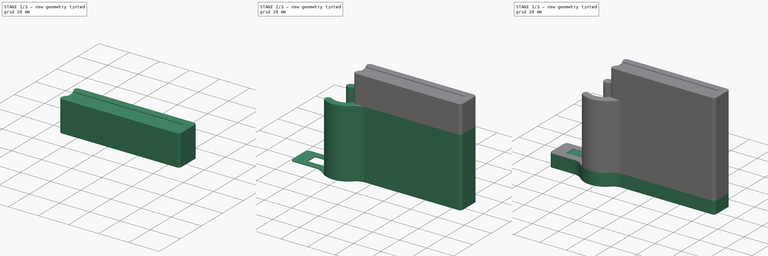
[diagram: build sequence overview — one tinted view per stage of 3, left to right]
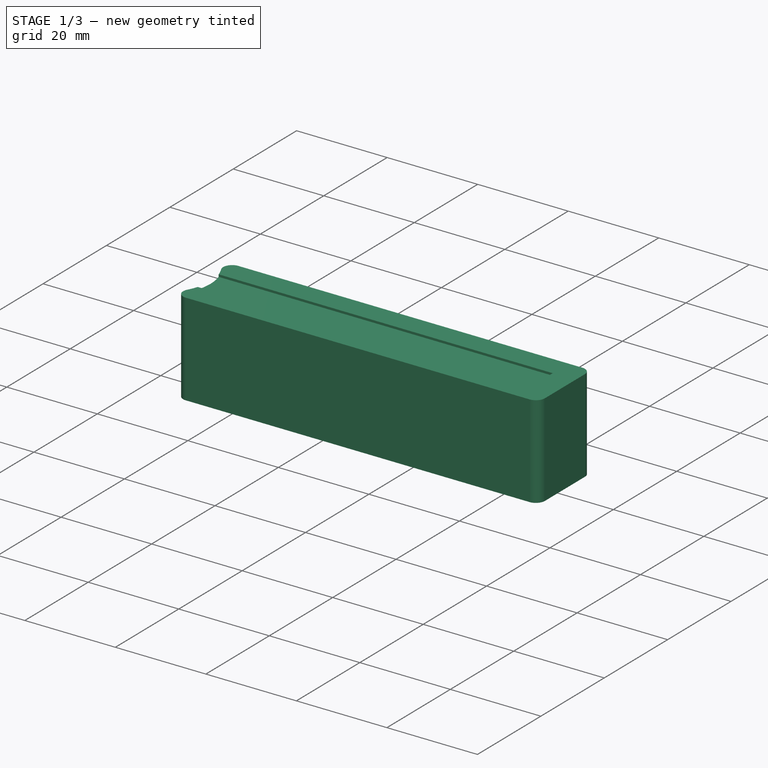
[diagram: stage 1 of 3 — iso view after this stage's code; geometry added in this stage tinted green]
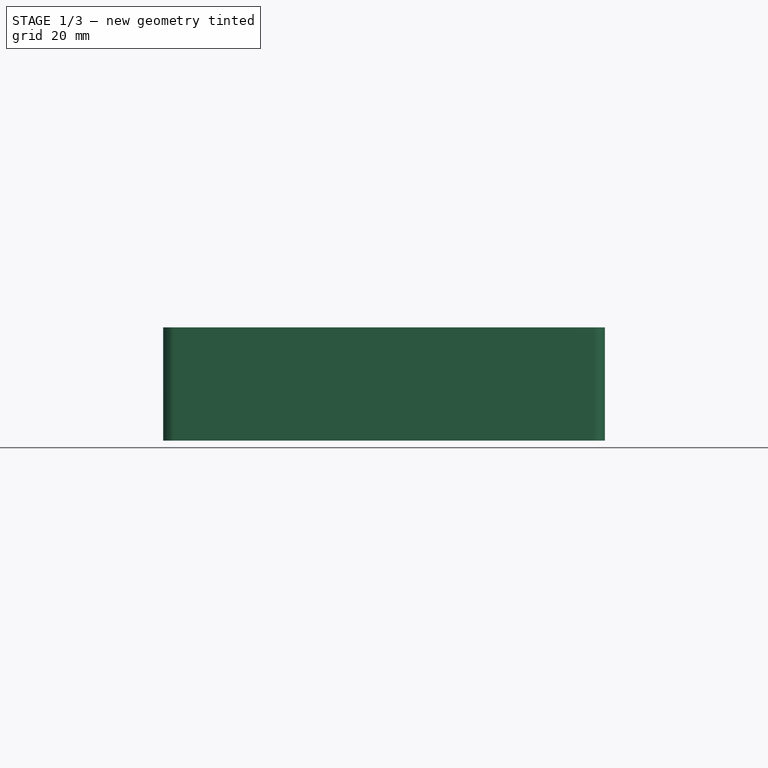
[diagram: stage 1 of 3 — front view after this stage's code; geometry added in this stage tinted green]
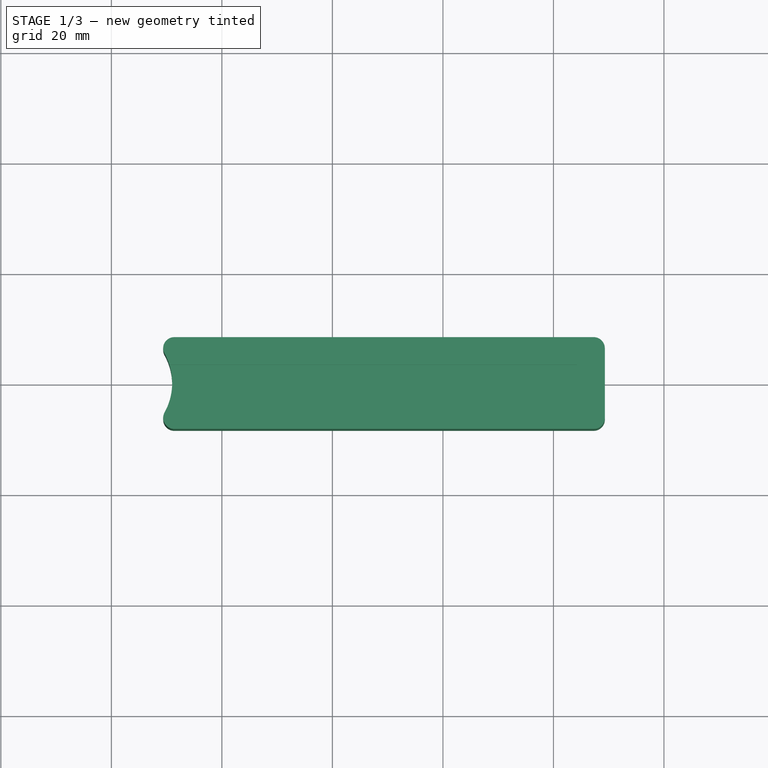
[diagram: stage 1 of 3 — top view after this stage's code; geometry added in this stage tinted green]
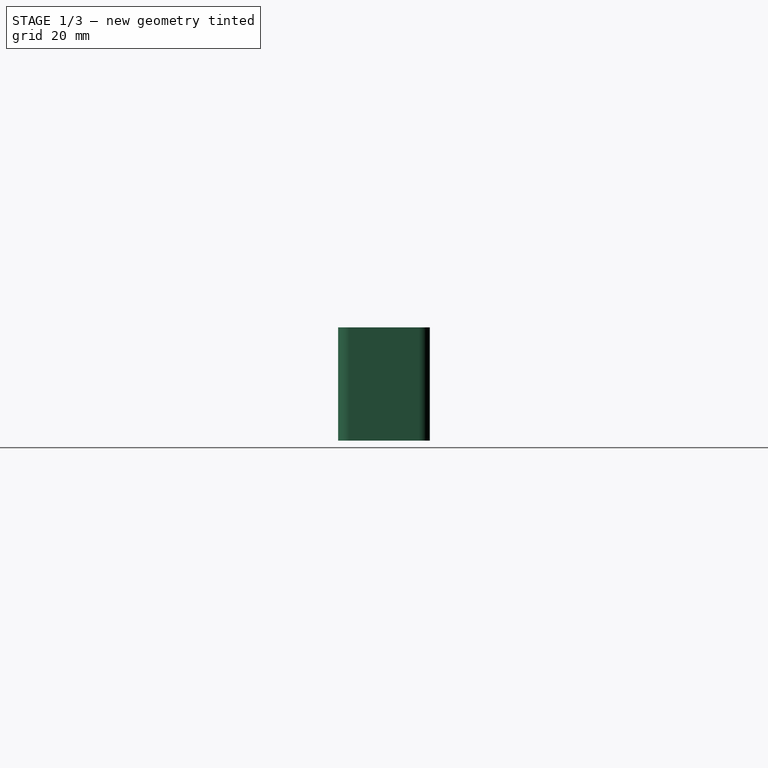
[diagram: stage 1 of 3 — right view after this stage's code; geometry added in this stage tinted green]
FCSTD DOCUMENT  (FreeCAD 0.20R29410 (Git))
Label: cell_welding_jig_lower
License: All rights reserved
LicenseURL: http://en.wikipedia.org/wiki/All_rights_reserved
objects: Sketcher::SketchObject×6, Part::Extrusion×6, Spreadsheet::Sheet×1, Part::MultiFuse×1, Part::Fillet×1
note: 14 computed .brp shape members not serialized (recipe doc carries the construction recipe); baked Part::Feature solids carry a one-line shape summary decoded from their .brp

FEATURE [Part::Extrusion] Extrude009  label="Extrude_Cell_Handling"
  Base = -> Sketch009
  Dir = (0,0,1)
  DirMode = 2
  FaceMakerClass = Part::FaceMakerBullseye
  LengthFwd = 78
  LengthRev = -60
  Solid = true
  Symmetric = false
  expr: LengthFwd = <<Param>>.Body_Base_Thickness + <<Param>>.Cell_Length - <<Param>>.Cell_Ring_Length
  expr: LengthRev = -(<<Param>>.Body_Base_Thickness + <<Param>>.Cell_Length - <<Param>>.Body_Cell_Handling_Height)
FEATURE [Part::Extrusion] Extrude010  label="Extrude_Cell_Ring"
  Base = -> Sketch010
  Dir = (0,0,1)
  DirMode = 2
  FaceMakerClass = Part::FaceMakerBullseye
  LengthFwd = 80
  LengthRev = -78
  Solid = true
  Symmetric = false
  expr: LengthFwd = <<Param>>.Body_Base_Thickness + <<Param>>.Cell_Length
  expr: LengthRev = -(<<Param>>.Body_Base_Thickness + <<Param>>.Cell_Length - <<Param>>.Cell_Ring_Length)
FEATURE [Part::Extrusion] Extrude011  label="Extrude_Upper_Celltab"
  Base = -> Sketch011
  Dir = (0,0,1)
  DirMode = 2
  FaceMakerClass = Part::FaceMakerBullseye
  LengthFwd = 80.5
  LengthRev = -80
  Solid = true
  Symmetric = false
  expr: LengthFwd = <<Param>>.Body_Base_Thickness + <<Param>>.Cell_Length + <<Param>>.Celltab_Up_Thickness
  expr: LengthRev = -(<<Param>>.Body_Base_Thickness + <<Param>>.Cell_Length)
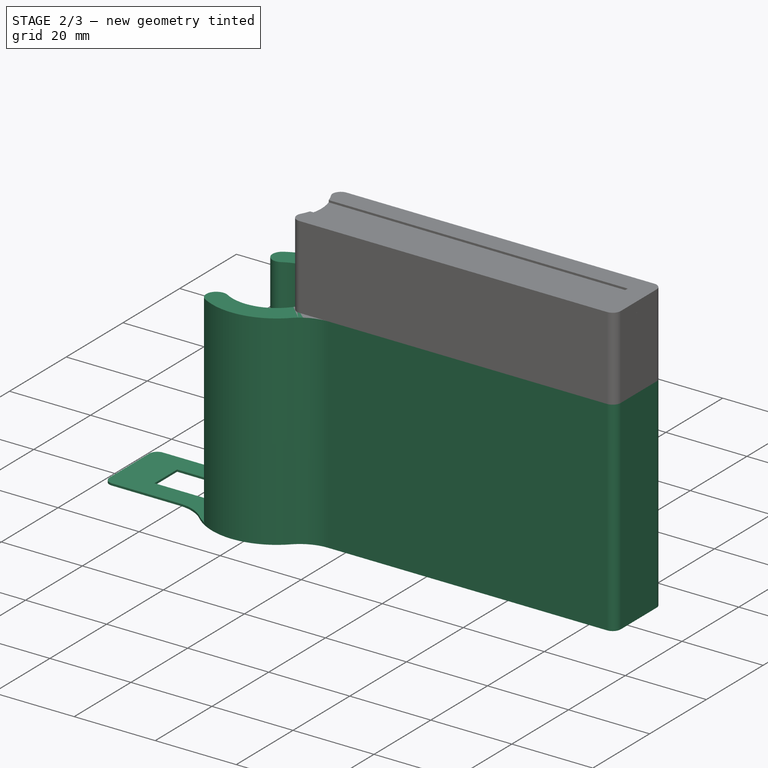
[diagram: stage 2 of 3 — iso view after this stage's code; geometry added in this stage tinted green]
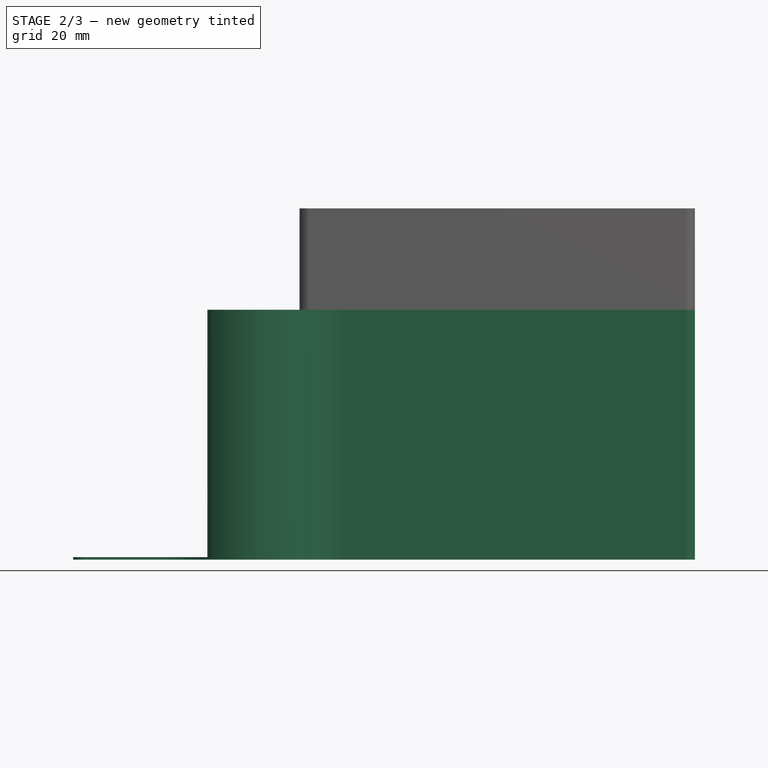
[diagram: stage 2 of 3 — front view after this stage's code; geometry added in this stage tinted green]
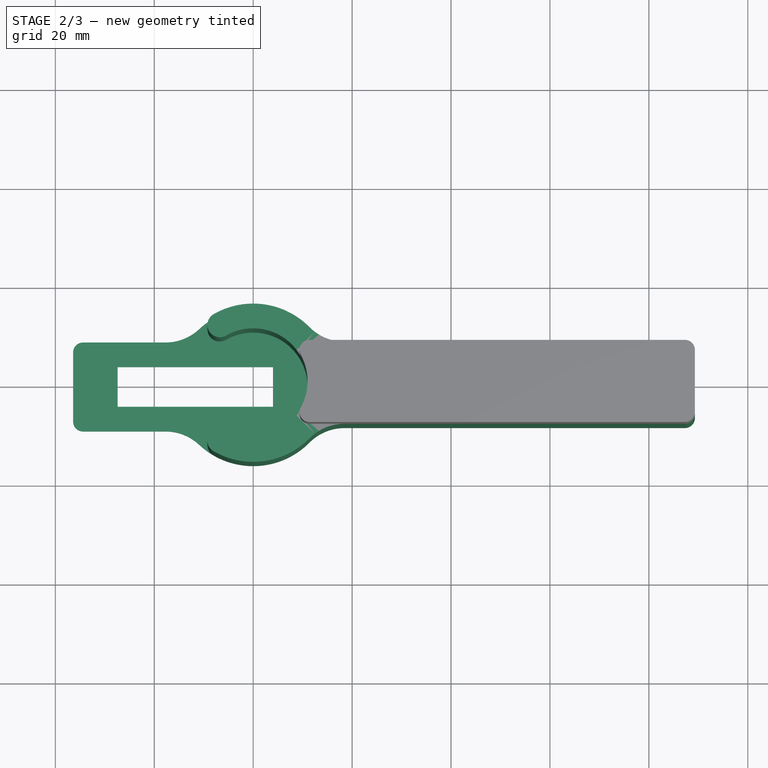
[diagram: stage 2 of 3 — top view after this stage's code; geometry added in this stage tinted green]
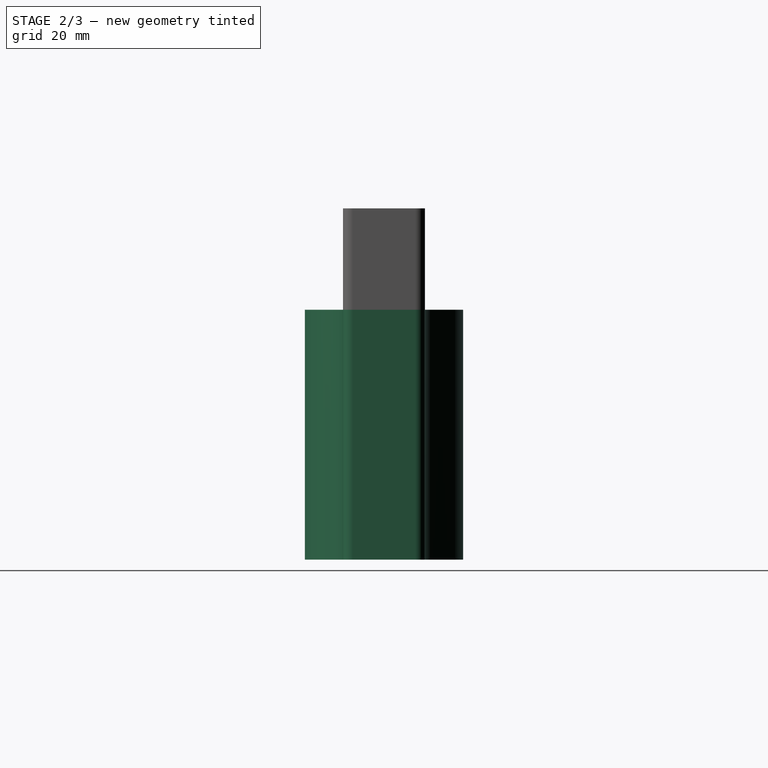
[diagram: stage 2 of 3 — right view after this stage's code; geometry added in this stage tinted green]
FEATURE [Part::Extrusion] Extrude007  label="Extrude_Lower_Celltab"
  Base = -> Sketch007
  Dir = (0,0,1)
  DirMode = 2
  FaceMakerClass = Part::FaceMakerBullseye
  LengthFwd = 10
  LengthRev = -9.5
  Solid = true
  Symmetric = false
  expr: LengthFwd = <<Param>>.Body_Base_Thickness
  expr: LengthRev = -(<<Param>>.Body_Base_Thickness - <<Param>>.Celltab_Low_Thickness)
FEATURE [Part::Extrusion] Extrude008  label="Extrude_Cell_Holder"
  Base = -> Sketch008
  Dir = (0,0,1)
  DirMode = 2
  FaceMakerClass = Part::FaceMakerBullseye
  LengthFwd = 60
  LengthRev = -10
  Solid = true
  Symmetric = false
  expr: LengthFwd = <<Param>>.Body_Base_Thickness + <<Param>>.Cell_Length - <<Param>>.Body_Cell_Handling_Height
  expr: LengthRev = -<<Param>>.Body_Base_Thickness
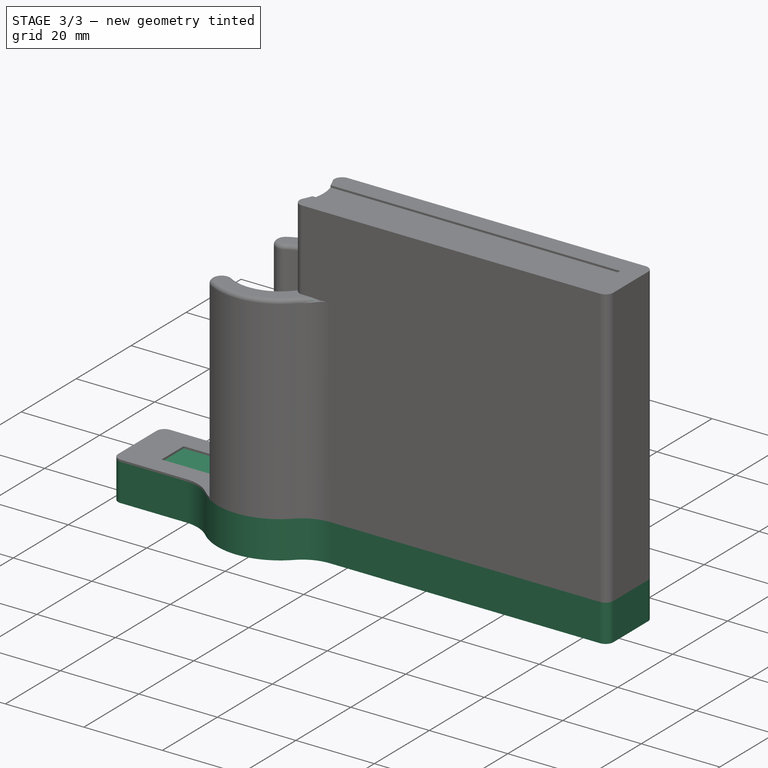
[diagram: stage 3 of 3 — iso view after this stage's code; geometry added in this stage tinted green]
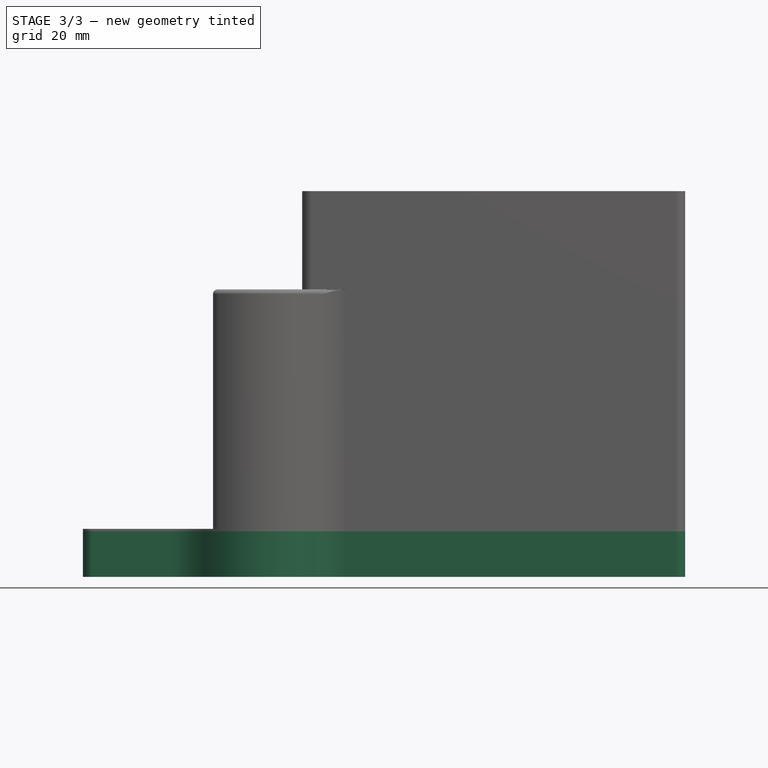
[diagram: stage 3 of 3 — front view after this stage's code; geometry added in this stage tinted green]
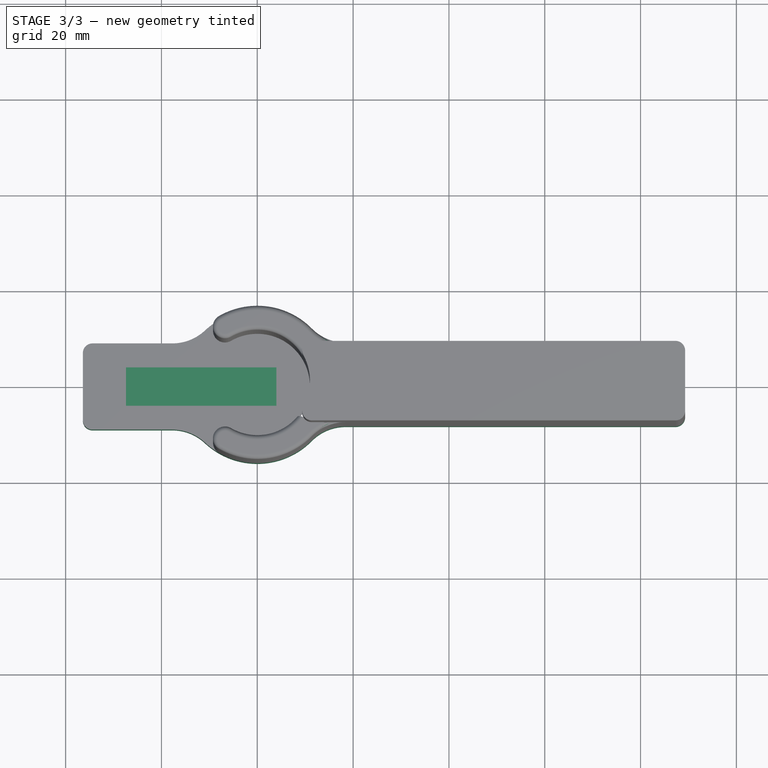
[diagram: stage 3 of 3 — top view after this stage's code; geometry added in this stage tinted green]
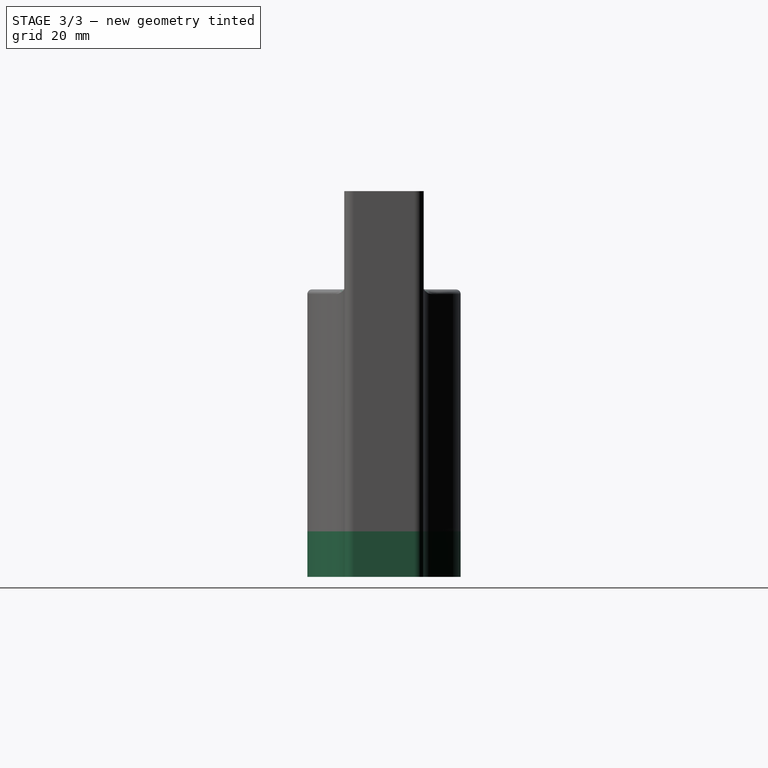
[diagram: stage 3 of 3 — right view after this stage's code; geometry added in this stage tinted green]
FEATURE [Spreadsheet::Sheet] Spreadsheet  label="Param"
  cells = A1=Cell; A2=Cell_Diameter; B2(Cell_Diameter)=21; A3=Cell_Length; B3(Cell_Length)=70; A4=Cell_Clearance; B4(Cell_Clearance)=0.5; A5=Cell_Ring_Diameter; B5(Cell_Ring_Diameter)=21; A6=Cell_Ring_Length; B6(Cell_Ring_Length)=2; A8=Lower Celltab; A9=Celltab_Low_Width; B9(Celltab_Low_Width)=6; A10=Celltab_Low_Length; B10(Celltab_Low_Length)=33.4; A11=Celltab_Low_Clearance; B11(Celltab_Low_Clearance)=1; A12=Celltab_Low_Thickness; B12(Celltab_Low_Thickness)=0.5; A14=Upper Celltab; A15=Celltab_Up_Width; B15(Celltab_Up_Width)=6; A16=Celltab_Up_Length; B16(Celltab_Up_Length)=87; A17=Celltab_Up_Clearance; B17(Celltab_Up_Clearance)=0.3; A18=Celltab_Up_Thickness; B18(Celltab_Up_Thickness)=0.5; A20=Body; A21=Body_Width; B21(Body_Width)=25; A22=Body_Cell_Wall; B22(Body_Cell_Wall)=5; A23=Body_Celltab_Wall; B23(Body_Celltab_Wall)=5; A24=Body_Cell_Opening_Angle; B24(Body_Cell_Opening_Angle)=120; A25=Body_Cell_Handling_Height; B25(Body_Cell_Handling_Height)=20; A26=Body_Base_Thickness; B26(Body_Base_Thickness)=10; A27=Body_Radius_Convex; B27(Body_Radius_Convex)=2; A28=Body_Radius_Concave; B28(Body_Radius_Concave)=10
FEATURE [Sketcher::SketchObject] Sketch006  label="Sketch_Base"
  FullyConstrained = true
  expr: Constraints[39] = <<Param>>.Body_Radius_Convex
  expr: Constraints[43] = <<Param>>.Body_Radius_Concave
  expr: Constraints[44] = <<Param>>.Celltab_Low_Length - <<Param>>.Celltab_Low_Width / 2 + <<Param>>.Celltab_Low_Clearance + <<Param>>.Body_Celltab_Wall
  expr: Constraints[45] = <<Param>>.Celltab_Up_Length - <<Param>>.Celltab_Up_Width / 2 + <<Param>>.Celltab_Up_Clearance + <<Param>>.Body_Celltab_Wall
  expr: Constraints[46] = <<Param>>.Celltab_Up_Width + 2 * <<Param>>.Celltab_Up_Clearance + 2 * <<Param>>.Body_Celltab_Wall
  expr: Constraints[47] = <<Param>>.Celltab_Low_Width + 2 * <<Param>>.Celltab_Low_Clearance + 2 * <<Param>>.Body_Celltab_Wall
  expr: Constraints[9] = <<Param>>.Cell_Diameter + 2 * <<Param>>.Cell_Clearance + 2 * Spreadsheet.Body_Cell_Wall
  sketch-geometry (20):
    g0: ArcOfCircle CenterX=0 CenterY=0 CenterZ=0 NormalX=0 NormalY=0 NormalZ=1 AngleXU=0 Radius=16 StartAngle=0.780798 EndAngle=2.32214
    g1: ArcOfCircle CenterX=0 CenterY=0 CenterZ=0 NormalX=0 NormalY=0 NormalZ=1 AngleXU=0 Radius=16 StartAngle=3.96104 EndAngle=5.50239
    g2: LineSegment StartX=-17.7482 StartY=9 StartZ=0 EndX=-34.4 EndY=9 EndZ=0
    g3: LineSegment StartX=-36.4 StartY=7 StartZ=0 EndX=-36.4 EndY=-7 EndZ=0
    g4: LineSegment StartX=-34.4 StartY=-9 StartZ=0 EndX=-17.7482 EndY=-9 EndZ=0
    g5: LineSegment StartX=18.4692 StartY=-8.3 StartZ=0 EndX=87.3 EndY=-8.3 EndZ=0
    g6: LineSegment StartX=89.3 StartY=-6.3 StartZ=0 EndX=89.3 EndY=6.3 EndZ=0
    g7: LineSegment StartX=87.3 StartY=8.3 StartZ=0 EndX=18.4692 EndY=8.3 EndZ=0
    g8: LineSegment StartX=-34.4 StartY=9 StartZ=0 EndX=0 EndY=0 EndZ=0
    g9: LineSegment StartX=-34.4 StartY=-9 StartZ=0 EndX=0 EndY=0 EndZ=0
    g10: LineSegment StartX=87.3 StartY=8.3 StartZ=0 EndX=0 EndY=0 EndZ=0
    g11: LineSegment StartX=87.3 StartY=-8.3 StartZ=0 EndX=0 EndY=0 EndZ=0
    g12: ArcOfCircle CenterX=-34.4 CenterY=7 CenterZ=0 NormalX=0 NormalY=0 NormalZ=1 AngleXU=0 Radius=2 StartAngle=1.5708 EndAngle=3.14159
    g13: ArcOfCircle CenterX=-34.4 CenterY=-7 CenterZ=0 NormalX=0 NormalY=0 NormalZ=1 AngleXU=0 Radius=2 StartAngle=3.14159 EndAngle=4.71239
    g14: ArcOfCircle CenterX=87.3 CenterY=6.3 CenterZ=0 NormalX=0 NormalY=0 NormalZ=1 AngleXU=0 Radius=2 StartAngle=2e-16 EndAngle=1.5708
    g15: ArcOfCircle CenterX=87.3 CenterY=-6.3 CenterZ=0 NormalX=0 NormalY=0 NormalZ=1 AngleXU=0 Radius=2 StartAngle=4.71239 EndAngle=6.28319
    g16: ArcOfCircle CenterX=-17.7482 CenterY=19 CenterZ=0 NormalX=0 NormalY=0 NormalZ=1 AngleXU=0 Radius=10 StartAngle=4.71239 EndAngle=5.46374
    g17: ArcOfCircle CenterX=18.4692 CenterY=18.3 CenterZ=0 NormalX=0 NormalY=0 NormalZ=1 AngleXU=0 Radius=10 StartAngle=3.92239 EndAngle=4.71239
    g18: ArcOfCircle CenterX=18.4692 CenterY=-18.3 CenterZ=0 NormalX=0 NormalY=0 NormalZ=1 AngleXU=0 Radius=10 StartAngle=1.5708 EndAngle=2.3608
    g19: ArcOfCircle CenterX=-17.7482 CenterY=-19 CenterZ=0 NormalX=0 NormalY=0 NormalZ=1 AngleXU=0 Radius=10 StartAngle=0.819448 EndAngle=1.5708
  constraints (48):
    c: Coincident(g0,g-1)
    c: Coincident(g1,g0)
    c: Horizontal(g2)
    c: Vertical(g3)
    c: Horizontal(g4)
    c: Horizontal(g5)
    c: Vertical(g6)
    c: Horizontal(g7)
    c: Equal(g0,g1)
    c: Diameter(g0) = 32
    c: Coincident(g8,g0)
    c: Coincident(g9,g0)
    c: Coincident(g10,g0)
    c: Coincident(g11,g0)
    c: Equal(g8,g9)
    c: Equal(g10,g11)
    c: Tangent(g2,g12) = -1.5708
    c: Tangent(g3,g12) = -1.5708
    c: Tangent(g4,g13) = -1.5708
    c: Tangent(g3,g13) = -1.5708
    c: Tangent(g7,g14) = -1.5708
    c: Tangent(g6,g14) = -1.5708
    c: Tangent(g5,g15) = -1.5708
    c: Tangent(g6,g15) = -1.5708
    c: Tangent(g2,g16) = 1.5708
    c: Tangent(g0,g16) = 1.5708
    c: Tangent(g7,g17) = 1.5708
    c: Tangent(g0,g17) = 1.5708
    c: Tangent(g5,g18) = 1.5708
    c: Tangent(g1,g18) = 1.5708
    c: Tangent(g4,g19) = 1.5708
    c: Tangent(g1,g19) = 1.5708
    c: Coincident(g8,g2)
    c: Coincident(g9,g4)
    c: Coincident(g10,g7)
    c: Coincident(g5,g11)
    c: Equal(g12,g13)
    c: Equal(g12,g15)
    c: Equal(g12,g14)
    c: Radius(g12) = 2
    c: Equal(g16,g19)
    c: Equal(g16,g18)
    c: Equal(g16,g17)
    c: Radius(g16) = 10
    c: Distance(g3,g-2) = 36.4
    c: Distance(g6,g-2) = 89.3
    c: Distance(g7,g5) = 16.6
    c: Distance(g2,g4) = 18
FEATURE [Sketcher::SketchObject] Sketch007  label="Sketch_Lower_Celltab"
  FullyConstrained = true
  expr: Constraints[39] = <<Param>>.Body_Radius_Convex
  expr: Constraints[43] = <<Param>>.Body_Radius_Concave
  expr: Constraints[44] = <<Param>>.Celltab_Low_Length - <<Param>>.Celltab_Low_Width / 2 + <<Param>>.Celltab_Low_Clearance + <<Param>>.Body_Celltab_Wall
  expr: Constraints[45] = <<Param>>.Celltab_Up_Length - <<Param>>.Celltab_Up_Width / 2 + <<Param>>.Celltab_Up_Clearance + <<Param>>.Body_Celltab_Wall
  expr: Constraints[46] = <<Param>>.Celltab_Up_Width + 2 * <<Param>>.Celltab_Up_Clearance + 2 * <<Param>>.Body_Celltab_Wall
  expr: Constraints[47] = <<Param>>.Celltab_Low_Width + 2 * <<Param>>.Celltab_Low_Clearance + 2 * <<Param>>.Body_Celltab_Wall
  expr: Constraints[56] = <<Param>>.Celltab_Low_Width + 2 * <<Param>>.Celltab_Low_Clearance
  expr: Constraints[57] = <<Param>>.Celltab_Low_Length - <<Param>>.Celltab_Low_Width / 2 + <<Param>>.Celltab_Low_Clearance
  expr: Constraints[58] = <<Param>>.Celltab_Low_Width / 2 + <<Param>>.Celltab_Low_Clearance
  expr: Constraints[9] = <<Param>>.Cell_Diameter + 2 * <<Param>>.Cell_Clearance + 2 * Spreadsheet.Body_Cell_Wall
  sketch-geometry (26):
    g0: ArcOfCircle CenterX=0 CenterY=0 CenterZ=0 NormalX=0 NormalY=0 NormalZ=1 AngleXU=0 Radius=16 StartAngle=0.780798 EndAngle=2.32214
    g1: ArcOfCircle CenterX=0 CenterY=0 CenterZ=0 NormalX=0 NormalY=0 NormalZ=1 AngleXU=0 Radius=16 StartAngle=3.96104 EndAngle=5.50239
    g2: LineSegment StartX=-17.7482 StartY=9 StartZ=0 EndX=-34.4 EndY=9 EndZ=0
    g3: LineSegment StartX=-36.4 StartY=7 StartZ=0 EndX=-36.4 EndY=-7 EndZ=0
    g4: LineSegment StartX=-34.4 StartY=-9 StartZ=0 EndX=-17.7482 EndY=-9 EndZ=0
    g5: LineSegment StartX=18.4692 StartY=-8.3 StartZ=0 EndX=87.3 EndY=-8.3 EndZ=0
    g6: LineSegment StartX=89.3 StartY=-6.3 StartZ=0 EndX=89.3 EndY=6.3 EndZ=0
    g7: LineSegment StartX=87.3 StartY=8.3 StartZ=0 EndX=18.4692 EndY=8.3 EndZ=0
    g8: LineSegment StartX=-34.4 StartY=9 StartZ=0 EndX=0 EndY=0 EndZ=0
    g9: LineSegment StartX=-34.4 StartY=-9 StartZ=0 EndX=0 EndY=0 EndZ=0
    g10: LineSegment StartX=87.3 StartY=8.3 StartZ=0 EndX=0 EndY=0 EndZ=0
    g11: LineSegment StartX=87.3 StartY=-8.3 StartZ=0 EndX=0 EndY=0 EndZ=0
    g12: ArcOfCircle CenterX=-34.4 CenterY=7 CenterZ=0 NormalX=0 NormalY=0 NormalZ=1 AngleXU=0 Radius=2 StartAngle=1.5708 EndAngle=3.14159
    g13: ArcOfCircle CenterX=-34.4 CenterY=-7 CenterZ=0 NormalX=0 NormalY=0 NormalZ=1 AngleXU=0 Radius=2 StartAngle=3.14159 EndAngle=4.71239
    g14: ArcOfCircle CenterX=87.3 CenterY=6.3 CenterZ=0 NormalX=0 NormalY=0 NormalZ=1 AngleXU=0 Radius=2 StartAngle=2e-16 EndAngle=1.5708
    g15: ArcOfCircle CenterX=87.3 CenterY=-6.3 CenterZ=0 NormalX=0 NormalY=0 NormalZ=1 AngleXU=0 Radius=2 StartAngle=4.71239 EndAngle=6.28319
    g16: ArcOfCircle CenterX=-17.7482 CenterY=19 CenterZ=0 NormalX=0 NormalY=0 NormalZ=1 AngleXU=0 Radius=10 StartAngle=4.71239 EndAngle=5.46374
    g17: ArcOfCircle CenterX=18.4692 CenterY=18.3 CenterZ=0 NormalX=0 NormalY=0 NormalZ=1 AngleXU=0 Radius=10 StartAngle=3.92239 EndAngle=4.71239
    g18: ArcOfCircle CenterX=18.4692 CenterY=-18.3 CenterZ=0 NormalX=0 NormalY=0 NormalZ=1 AngleXU=0 Radius=10 StartAngle=1.5708 EndAngle=2.3608
    g19: ArcOfCircle CenterX=-17.7482 CenterY=-19 CenterZ=0 NormalX=0 NormalY=0 NormalZ=1 AngleXU=0 Radius=10 StartAngle=0.819448 EndAngle=1.5708
    g20: LineSegment StartX=-27.4 StartY=4 StartZ=0 EndX=4 EndY=4 EndZ=0
    g21: LineSegment StartX=4 StartY=4 StartZ=0 EndX=4 EndY=-4 EndZ=0
    g22: LineSegment StartX=4 StartY=-4 StartZ=0 EndX=-27.4 EndY=-4 EndZ=0
    g23: LineSegment StartX=-27.4 StartY=4 StartZ=0 EndX=-27.4 EndY=-4 EndZ=0
    g24: LineSegment StartX=0 StartY=0 StartZ=0 EndX=4 EndY=4 EndZ=0
    g25: LineSegment StartX=0 StartY=0 StartZ=0 EndX=4 EndY=-4 EndZ=0
  constraints (64):
    c: Coincident(g0,g-1)
    c: Coincident(g1,g0)
    c: Horizontal(g2)
    c: Vertical(g3)
    c: Horizontal(g4)
    c: Horizontal(g5)
    c: Vertical(g6)
    c: Horizontal(g7)
    c: Equal(g0,g1)
    c: Diameter(g0) = 32
    c: Coincident(g8,g0)
    c: Coincident(g9,g0)
    c: Coincident(g10,g0)
    c: Coincident(g11,g0)
    c: Equal(g8,g9)
    c: Equal(g10,g11)
    c: Tangent(g2,g12) = -1.5708
    c: Tangent(g3,g12) = -1.5708
    c: Tangent(g4,g13) = -1.5708
    c: Tangent(g3,g13) = -1.5708
    c: Tangent(g7,g14) = -1.5708
    c: Tangent(g6,g14) = -1.5708
    c: Tangent(g5,g15) = -1.5708
    c: Tangent(g6,g15) = -1.5708
    c: Tangent(g2,g16) = 1.5708
    c: Tangent(g0,g16) = 1.5708
    c: Tangent(g7,g17) = 1.5708
    c: Tangent(g0,g17) = 1.5708
    c: Tangent(g5,g18) = 1.5708
    c: Tangent(g1,g18) = 1.5708
    c: Tangent(g4,g19) = 1.5708
    c: Tangent(g1,g19) = 1.5708
    c: Coincident(g8,g2)
    c: Coincident(g9,g4)
    c: Coincident(g10,g7)
    c: Coincident(g5,g11)
    c: Equal(g12,g13)
    c: Equal(g12,g15)
    c: Equal(g12,g14)
    c: Radius(g12) = 2
    c: Equal(g16,g19)
    c: Equal(g16,g18)
    c: Equal(g16,g17)
    c: Radius(g16) = 10
    c: Distance(g3,g-2) = 36.4
    c: Distance(g6,g-2) = 89.3
    c: Distance(g7,g5) = 16.6
    c: Distance(g2,g4) = 18
    c: Horizontal(g20)
    c: Coincident(g21,g20)
    c: Vertical(g21)
    c: Coincident(g22,g21)
    c: Horizontal(g22)
    c: Coincident(g23,g20)
    c: Coincident(g23,g22)
    c: Vertical(g23)
    c: Distance(g21) = 8
    c: Distance(g22) = 31.4
    c: Distance(g0,g21) = 4
    c: Coincident(g24,g0)
    c: Coincident(g24,g20)
    c: Coincident(g25,g0)
    c: Coincident(g25,g21)
    c: Equal(g24,g25)
FEATURE [Sketcher::SketchObject] Sketch008  label="Sketch_Cell_Holder"
  FullyConstrained = true
  expr: Constraints[22] = <<Param>>.Celltab_Up_Length - <<Param>>.Celltab_Up_Width / 2 + <<Param>>.Celltab_Up_Clearance + <<Param>>.Body_Celltab_Wall
  expr: Constraints[23] = <<Param>>.Celltab_Up_Width + 2 * <<Param>>.Celltab_Up_Clearance + 2 * <<Param>>.Body_Celltab_Wall
  expr: Constraints[25] = <<Param>>.Cell_Diameter + 2 * <<Param>>.Cell_Clearance
  expr: Constraints[37] = <<Param>>.Body_Radius_Convex
  expr: Constraints[39] = <<Param>>.Body_Radius_Concave
  expr: Constraints[43] = <<Param>>.Body_Cell_Opening_Angle
  expr: Constraints[6] = <<Param>>.Cell_Diameter + 2 * <<Param>>.Cell_Clearance + 2 * Spreadsheet.Body_Cell_Wall
  sketch-geometry (17):
    g0: ArcOfCircle CenterX=1.04876e-11 CenterY=0 CenterZ=0 NormalX=0 NormalY=0 NormalZ=1 AngleXU=0 Radius=16 StartAngle=0.780798 EndAngle=2.0944
    g1: ArcOfCircle CenterX=1.04876e-11 CenterY=0 CenterZ=0 NormalX=0 NormalY=0 NormalZ=1 AngleXU=0 Radius=16 StartAngle=4.18879 EndAngle=5.50239
    g2: LineSegment StartX=18.4692 StartY=-8.3 StartZ=0 EndX=87.3 EndY=-8.3 EndZ=0
    g3: LineSegment StartX=89.3 StartY=-6.3 StartZ=0 EndX=89.3 EndY=6.3 EndZ=0
    g4: LineSegment StartX=87.3 StartY=8.3 StartZ=0 EndX=18.4692 EndY=8.3 EndZ=0
    g5: LineSegment StartX=-6.75 StartY=11.6913 StartZ=0 EndX=1.04876e-11 EndY=0 EndZ=0
    g6: LineSegment StartX=-6.75 StartY=-11.6913 StartZ=0 EndX=1.04876e-11 EndY=0 EndZ=0
    g7: LineSegment StartX=87.3 StartY=8.3 StartZ=0 EndX=1.04876e-11 EndY=0 EndZ=0
    g8: LineSegment StartX=87.3 StartY=-8.3 StartZ=0 EndX=1.04876e-11 EndY=0 EndZ=0
    g9: ArcOfCircle CenterX=87.3 CenterY=6.3 CenterZ=0 NormalX=0 NormalY=0 NormalZ=1 AngleXU=0 Radius=2 StartAngle=-1.91e-13 EndAngle=1.5708
    g10: ArcOfCircle CenterX=87.3 CenterY=-6.3 CenterZ=0 NormalX=0 NormalY=0 NormalZ=1 AngleXU=0 Radius=2 StartAngle=4.71239 EndAngle=6.28319
    g11: ArcOfCircle CenterX=18.4692 CenterY=18.3 CenterZ=0 NormalX=0 NormalY=0 NormalZ=1 AngleXU=0 Radius=10 StartAngle=3.92239 EndAngle=4.71239
    g12: ArcOfCircle CenterX=18.4692 CenterY=-18.3 CenterZ=0 NormalX=0 NormalY=0 NormalZ=1 AngleXU=0 Radius=10 StartAngle=1.5708 EndAngle=2.3608
    g13: ArcOfCircle CenterX=1.04876e-11 CenterY=0 CenterZ=0 NormalX=0 NormalY=0 NormalZ=1 AngleXU=0 Radius=11 StartAngle=4.18879 EndAngle=8.37758
    g14: ArcOfCircle CenterX=-6.75 CenterY=11.6913 CenterZ=0 NormalX=0 NormalY=0 NormalZ=1 AngleXU=0 Radius=2.5 StartAngle=2.0944 EndAngle=5.23599
    g15: ArcOfCircle CenterX=-6.75 CenterY=-11.6913 CenterZ=0 NormalX=0 NormalY=0 NormalZ=1 AngleXU=0 Radius=2.5 StartAngle=1.0472 EndAngle=4.18879
    g16: LineSegment StartX=-6.75 StartY=11.6913 StartZ=0 EndX=-6.75 EndY=-11.6913 EndZ=0
  constraints (44):
    c: Coincident(g0,g-1)
    c: Coincident(g1,g0)
    c: Horizontal(g2)
    c: Vertical(g3)
    c: Horizontal(g4)
    c: Equal(g0,g1)
    c: Diameter(g0) = 32
    c: Coincident(g5,g0)
    c: Coincident(g6,g0)
    c: Coincident(g7,g0)
    c: Coincident(g8,g0)
    c: Equal(g7,g8)
    c: Tangent(g4,g9) = -1.5708
    c: Tangent(g3,g9) = -1.5708
    c: Tangent(g2,g10) = -1.5708
    c: Tangent(g3,g10) = -1.5708
    c: Tangent(g4,g11) = 1.5708
    c: Tangent(g0,g11) = 1.5708
    c: Tangent(g2,g12) = 1.5708
    c: Tangent(g1,g12) = 1.5708
    c: Coincident(g7,g4)
    c: Coincident(g2,g8)
    c: Distance(g3,g-2) = 89.3
    c: Distance(g4,g2) = 16.6
    c: Coincident(g13,g0)
    c: Diameter(g13) = 22
    c: Coincident(g14,g0)
    c: Coincident(g14,g13)
    c: Coincident(g15,g1)
    c: Coincident(g15,g13)
    c: Coincident(g5,g14)
    c: Coincident(g6,g15)
    c: PointOnObject(g13,g6)
    c: PointOnObject(g1,g6)
    c: PointOnObject(g13,g5)
    c: PointOnObject(g0,g5)
    c: Equal(g9,g10)
    c: Radius(g9) = 2
    c: Equal(g12,g11)
    c: Radius(g12) = 10
    c: Coincident(g16,g14)
    c: Coincident(g16,g15)
    c: Vertical(g16)
    c: Angle(g5,g6) = 2.0944
FEATURE [Sketcher::SketchObject] Sketch009  label="Sketch_Cell_Handling"
  FullyConstrained = true
  expr: Constraints[10] = <<Param>>.Celltab_Up_Length - <<Param>>.Celltab_Up_Width / 2 + <<Param>>.Celltab_Up_Clearance + <<Param>>.Body_Celltab_Wall
  expr: Constraints[11] = <<Param>>.Celltab_Up_Width + 2 * <<Param>>.Celltab_Up_Clearance + 2 * <<Param>>.Body_Celltab_Wall
  expr: Constraints[12] = <<Param>>.Cell_Diameter + 2 * <<Param>>.Cell_Clearance
  expr: Constraints[14] = <<Param>>.Body_Radius_Convex
  sketch-geometry (10):
    g0: LineSegment StartX=11.3715 StartY=-8.3 StartZ=0 EndX=87.3 EndY=-8.3 EndZ=0
    g1: LineSegment StartX=89.3 StartY=-6.3 StartZ=0 EndX=89.3 EndY=6.3 EndZ=0
    g2: LineSegment StartX=87.3 StartY=8.3 StartZ=0 EndX=11.3715 EndY=8.3 EndZ=0
    g3: LineSegment StartX=87.3 StartY=8.3 StartZ=0 EndX=0 EndY=0 EndZ=0
    g4: LineSegment StartX=87.3 StartY=-8.3 StartZ=0 EndX=0 EndY=0 EndZ=0
    g5: ArcOfCircle CenterX=87.3 CenterY=6.3 CenterZ=0 NormalX=0 NormalY=0 NormalZ=1 AngleXU=0 Radius=2 StartAngle=3.8032e-11 EndAngle=1.5708
    g6: ArcOfCircle CenterX=87.3 CenterY=-6.3 CenterZ=0 NormalX=0 NormalY=0 NormalZ=1 AngleXU=0 Radius=2 StartAngle=4.71239 EndAngle=6.28319
    g7: ArcOfCircle CenterX=0 CenterY=0 CenterZ=0 NormalX=0 NormalY=0 NormalZ=1 AngleXU=0 Radius=11 StartAngle=5.77726 EndAngle=6.78911
    g8: ArcOfCircle CenterX=11.3715 CenterY=6.3 CenterZ=0 NormalX=0 NormalY=0 NormalZ=1 AngleXU=0 Radius=2 StartAngle=1.5708 EndAngle=3.64752
    g9: ArcOfCircle CenterX=11.3715 CenterY=-6.3 CenterZ=0 NormalX=0 NormalY=0 NormalZ=1 AngleXU=0 Radius=2 StartAngle=2.63567 EndAngle=4.71239
  constraints (24):
    c: Horizontal(g0)
    c: Vertical(g1)
    c: Horizontal(g2)
    c: Equal(g3,g4)
    c: Tangent(g2,g5) = -1.5708
    c: Tangent(g1,g5) = -1.5708
    c: Tangent(g0,g6) = -1.5708
    c: Tangent(g1,g6) = -1.5708
    c: Coincident(g3,g2)
    c: Coincident(g0,g4)
    c: Distance(g1,g-2) = 89.3
    c: Distance(g2,g0) = 16.6
    c: Diameter(g7) = 22
    c: Equal(g5,g6)
    c: Radius(g5) = 2
    c: Coincident(g3,g7)
    c: Coincident(g7,g-1)
    c: Coincident(g4,g7)
    c: Tangent(g2,g8) = -1.5708
    c: Tangent(g7,g8) = 1.5708
    c: Tangent(g0,g9) = -1.5708
    c: Tangent(g7,g9) = 1.5708
    c: Equal(g8,g5)
    c: Equal(g9,g6)
FEATURE [Sketcher::SketchObject] Sketch010  label="Sketch_Cell_Ring"
  FullyConstrained = true
  expr: Constraints[10] = <<Param>>.Celltab_Up_Length - <<Param>>.Celltab_Up_Width / 2 + <<Param>>.Celltab_Up_Clearance + <<Param>>.Body_Celltab_Wall
  expr: Constraints[11] = <<Param>>.Celltab_Up_Width + 2 * <<Param>>.Celltab_Up_Clearance + 2 * <<Param>>.Body_Celltab_Wall
  expr: Constraints[12] = <<Param>>.Cell_Ring_Diameter + 2 * <<Param>>.Cell_Clearance
  expr: Constraints[14] = <<Param>>.Body_Radius_Convex
  sketch-geometry (10):
    g0: LineSegment StartX=11.3715 StartY=-8.3 StartZ=0 EndX=87.3 EndY=-8.3 EndZ=0
    g1: LineSegment StartX=89.3 StartY=-6.3 StartZ=0 EndX=89.3 EndY=6.3 EndZ=0
    g2: LineSegment StartX=87.3 StartY=8.3 StartZ=0 EndX=11.3715 EndY=8.3 EndZ=0
    g3: LineSegment StartX=87.3 StartY=8.3 StartZ=0 EndX=0 EndY=0 EndZ=0
    g4: LineSegment StartX=87.3 StartY=-8.3 StartZ=0 EndX=0 EndY=0 EndZ=0
    g5: ArcOfCircle CenterX=87.3 CenterY=6.3 CenterZ=0 NormalX=0 NormalY=0 NormalZ=1 AngleXU=0 Radius=2 StartAngle=0 EndAngle=1.5708
    g6: ArcOfCircle CenterX=87.3 CenterY=-6.3 CenterZ=0 NormalX=0 NormalY=0 NormalZ=1 AngleXU=0 Radius=2 StartAngle=4.71239 EndAngle=6.28319
    g7: ArcOfCircle CenterX=0 CenterY=0 CenterZ=0 NormalX=0 NormalY=0 NormalZ=1 AngleXU=0 Radius=11 StartAngle=5.77726 EndAngle=6.78911
    g8: ArcOfCircle CenterX=11.3715 CenterY=6.3 CenterZ=0 NormalX=0 NormalY=0 NormalZ=1 AngleXU=0 Radius=2 StartAngle=1.5708 EndAngle=3.64752
    g9: ArcOfCircle CenterX=11.3715 CenterY=-6.3 CenterZ=0 NormalX=0 NormalY=0 NormalZ=1 AngleXU=0 Radius=2 StartAngle=2.63567 EndAngle=4.71239
  constraints (24):
    c: Horizontal(g0)
    c: Vertical(g1)
    c: Horizontal(g2)
    c: Equal(g3,g4)
    c: Tangent(g2,g5) = -1.5708
    c: Tangent(g1,g5) = -1.5708
    c: Tangent(g0,g6) = -1.5708
    c: Tangent(g1,g6) = -1.5708
    c: Coincident(g3,g2)
    c: Coincident(g0,g4)
    c: Distance(g1,g-2) = 89.3
    c: Distance(g2,g0) = 16.6
    c: Diameter(g7) = 22
    c: Equal(g5,g6)
    c: Radius(g5) = 2
    c: Coincident(g3,g7)
    c: Coincident(g7,g-1)
    c: Coincident(g4,g7)
    c: Tangent(g2,g8) = -1.5708
    c: Tangent(g7,g8) = 1.5708
    c: Tangent(g0,g9) = -1.5708
    c: Tangent(g7,g9) = 1.5708
    c: Equal(g8,g5)
    c: Equal(g9,g6)
FEATURE [Sketcher::SketchObject] Sketch011  label="Sketch_Upper_Celltab"
  FullyConstrained = true
  expr: Constraints[10] = <<Param>>.Celltab_Up_Length - <<Param>>.Celltab_Up_Width / 2 + <<Param>>.Celltab_Up_Clearance + <<Param>>.Body_Celltab_Wall
  expr: Constraints[11] = <<Param>>.Celltab_Up_Width + 2 * <<Param>>.Celltab_Up_Clearance + 2 * <<Param>>.Body_Celltab_Wall
  expr: Constraints[12] = <<Param>>.Cell_Ring_Diameter + 2 * <<Param>>.Cell_Clearance
  expr: Constraints[14] = <<Param>>.Body_Radius_Convex
  expr: Constraints[40] = <<Param>>.Celltab_Up_Length - <<Param>>.Celltab_Up_Width / 2 + <<Param>>.Celltab_Up_Clearance
  expr: Constraints[41] = <<Param>>.Celltab_Low_Width + 2 * <<Param>>.Celltab_Up_Clearance
  sketch-geometry (17):
    g0: LineSegment StartX=11.3715 StartY=-8.3 StartZ=0 EndX=87.3 EndY=-8.3 EndZ=0
    g1: LineSegment StartX=89.3 StartY=-6.3 StartZ=0 EndX=89.3 EndY=6.3 EndZ=0
    g2: LineSegment StartX=87.3 StartY=8.3 StartZ=0 EndX=11.3715 EndY=8.3 EndZ=0
    g3: LineSegment StartX=87.3 StartY=8.3 StartZ=0 EndX=0 EndY=0 EndZ=0
    g4: LineSegment StartX=87.3 StartY=-8.3 StartZ=0 EndX=0 EndY=0 EndZ=0
    g5: ArcOfCircle CenterX=87.3 CenterY=6.3 CenterZ=0 NormalX=0 NormalY=0 NormalZ=1 AngleXU=0 Radius=2 StartAngle=0 EndAngle=1.5708
    g6: ArcOfCircle CenterX=87.3 CenterY=-6.3 CenterZ=0 NormalX=0 NormalY=0 NormalZ=1 AngleXU=0 Radius=2 StartAngle=4.71239 EndAngle=6.28319
    g7: ArcOfCircle CenterX=0 CenterY=0 CenterZ=0 NormalX=0 NormalY=0 NormalZ=1 AngleXU=0 Radius=11 StartAngle=5.77726 EndAngle=6.78911
    g8: ArcOfCircle CenterX=11.3715 CenterY=6.3 CenterZ=0 NormalX=0 NormalY=0 NormalZ=1 AngleXU=0 Radius=2 StartAngle=1.5708 EndAngle=3.64752
    g9: ArcOfCircle CenterX=11.3715 CenterY=-6.3 CenterZ=0 NormalX=0 NormalY=0 NormalZ=1 AngleXU=0 Radius=2 StartAngle=2.63567 EndAngle=4.71239
    g10: ArcOfCircle CenterX=0 CenterY=0 CenterZ=0 NormalX=0 NormalY=0 NormalZ=1 AngleXU=0 Radius=11 StartAngle=0.304693 EndAngle=0.505923
    g11: ArcOfCircle CenterX=0 CenterY=0 CenterZ=0 NormalX=0 NormalY=0 NormalZ=1 AngleXU=0 Radius=11 StartAngle=5.77726 EndAngle=5.97849
    g12: LineSegment StartX=10.4933 StartY=3.3 StartZ=0 EndX=84.3 EndY=3.3 EndZ=0
    g13: LineSegment StartX=84.3 StartY=3.3 StartZ=0 EndX=84.3 EndY=-3.3 EndZ=0
    g14: LineSegment StartX=84.3 StartY=-3.3 StartZ=0 EndX=10.4933 EndY=-3.3 EndZ=0
    g15: LineSegment StartX=0 StartY=0 StartZ=0 EndX=84.3 EndY=3.3 EndZ=0
    g16: LineSegment StartX=0 StartY=0 StartZ=0 EndX=84.3 EndY=-3.3 EndZ=0
  constraints (42):
    c: Horizontal(g0)
    c: Vertical(g1)
    c: Horizontal(g2)
    c: Equal(g3,g4)
    c: Tangent(g2,g5) = -1.5708
    c: Tangent(g1,g5) = -1.5708
    c: Tangent(g0,g6) = -1.5708
    c: Tangent(g1,g6) = -1.5708
    c: Coincident(g3,g2)
    c: Coincident(g0,g4)
    c: Distance(g1,g-2) = 89.3
    c: Distance(g2,g0) = 16.6
    c: Diameter(g7) = 22
    c: Equal(g5,g6)
    c: Radius(g5) = 2
    c: Coincident(g3,g7)
    c: Coincident(g7,g-1)
    c: Coincident(g4,g7)
    c: Tangent(g2,g8) = -1.5708
    c: Tangent(g7,g8) = 1.5708
    c: Tangent(g0,g9) = -1.5708
    c: Tangent(g7,g9) = 1.5708
    c: Equal(g8,g5)
    c: Equal(g9,g6)
    c: Coincident(g10,g3)
    c: Coincident(g10,g8)
    c: Coincident(g11,g10)
    c: Coincident(g11,g9)
    c: Coincident(g12,g10)
    c: Horizontal(g12)
    c: Coincident(g13,g12)
    c: Vertical(g13)
    c: Coincident(g14,g13)
    c: Coincident(g14,g11)
    c: Horizontal(g14)
    c: Coincident(g15,g10)
    c: Coincident(g15,g12)
    c: Coincident(g16,g10)
    c: Coincident(g16,g13)
    c: Equal(g15,g16)
    c: Distance(g12,g-2) = 84.3
    c: Distance(g13) = 6.6
FEATURE [Part::Extrusion] Extrude006  label="Extrude_Base"
  Base = -> Sketch006
  Dir = (0,0,1)
  DirMode = 2
  FaceMakerClass = Part::FaceMakerBullseye
  LengthFwd = 9.5
  LengthRev = 0
  Solid = true
  Symmetric = false
  expr: LengthFwd = <<Param>>.Body_Base_Thickness - <<Param>>.Celltab_Low_Thickness
FEATURE [Part::MultiFuse] Fusion001  label="NightCone_Welding_Jig_Lower"
  Shapes = -> [Extrude006,Extrude007,Extrude008,Extrude009,Extrude010,Extrude011]
FEATURE [Part::Fillet] Fillet
  Base = -> Fusion001
  Edges = 8 edges r=1: [Edge59,Edge77,Edge96,Edge97,Edge101,Edge104,Edge116,Edge118]
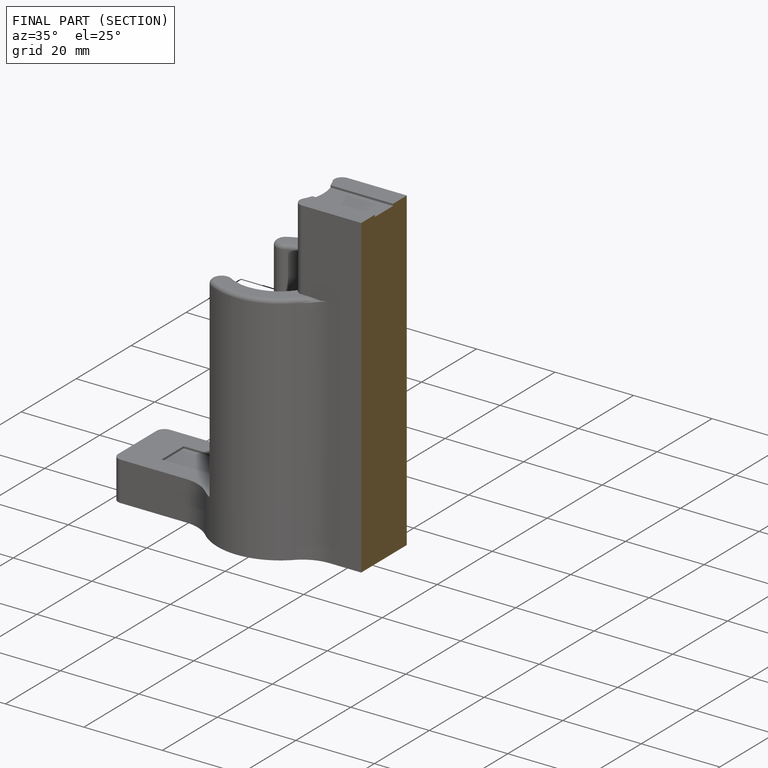
[diagram: finished part — half-section view (interior)]
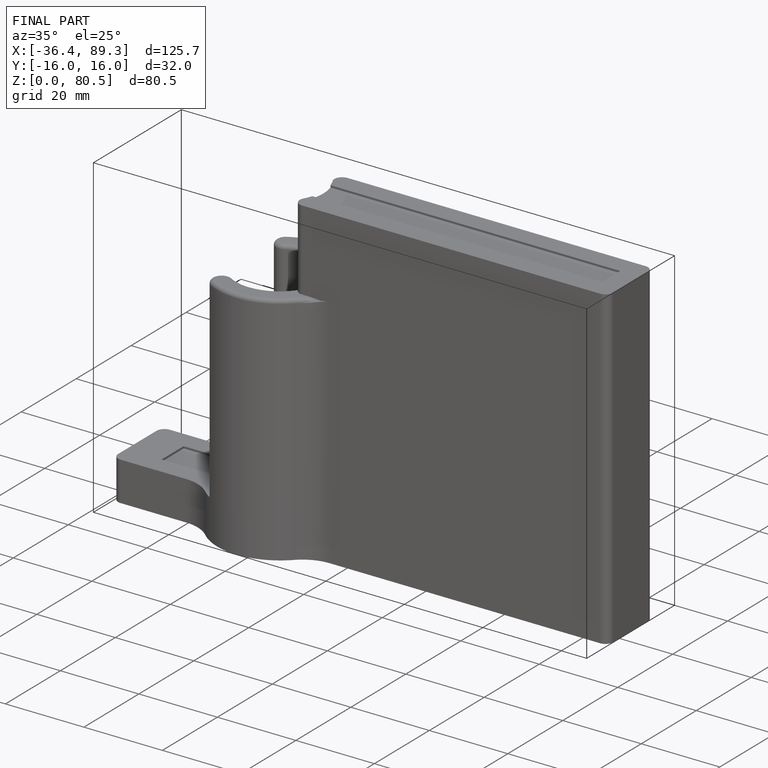
[diagram: finished part — iso view with bounding-box wireframe]
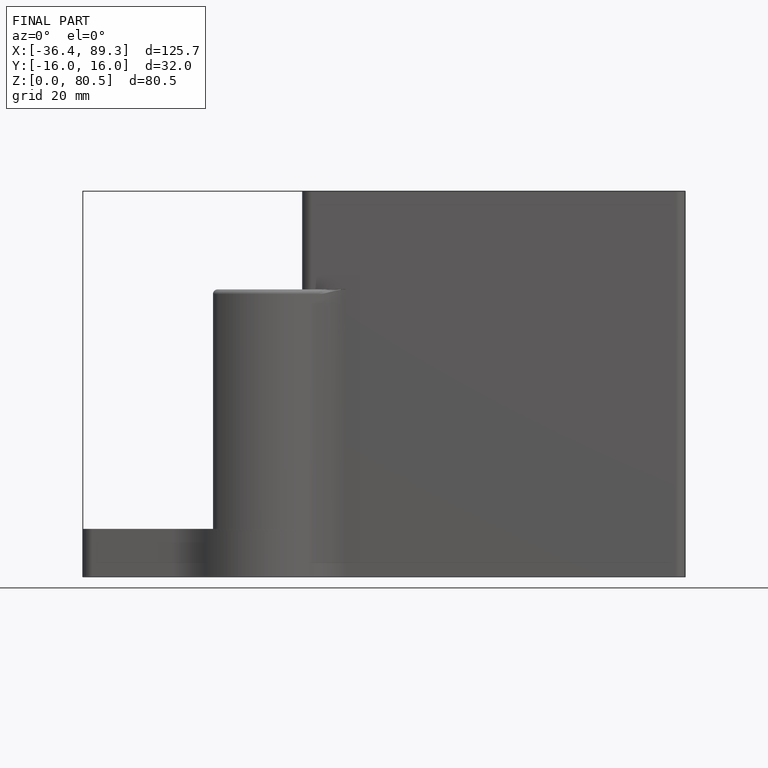
[diagram: finished part — front view with bounding-box wireframe]
